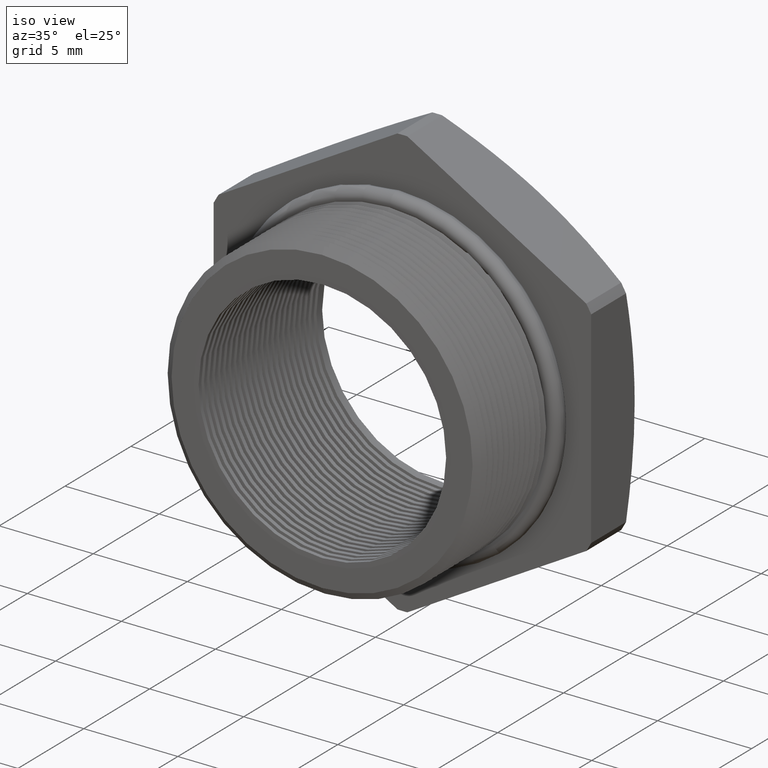
[diagram: clean part render]
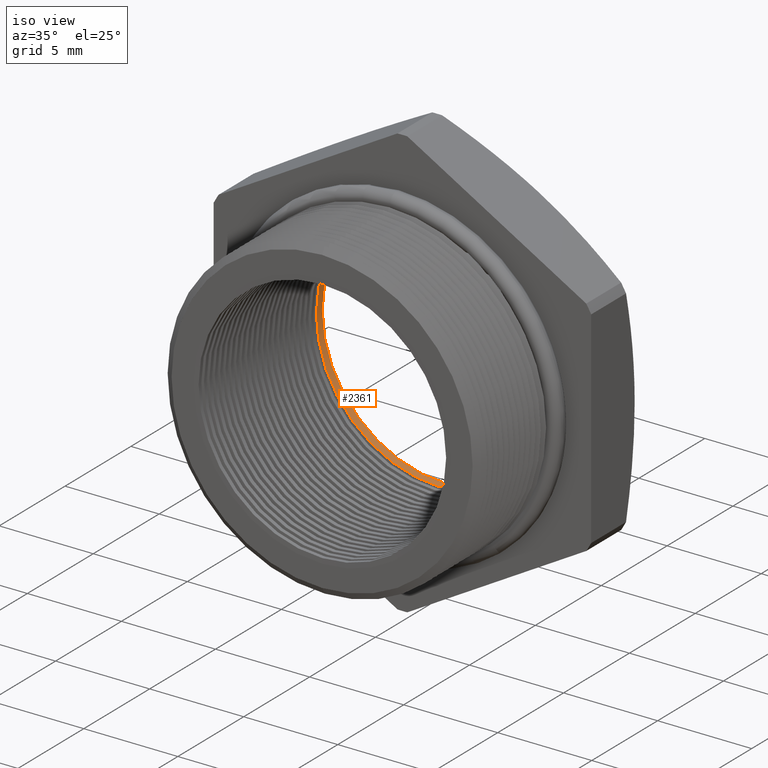
[diagram: same view with one face highlighted and labeled with its STEP entity id]
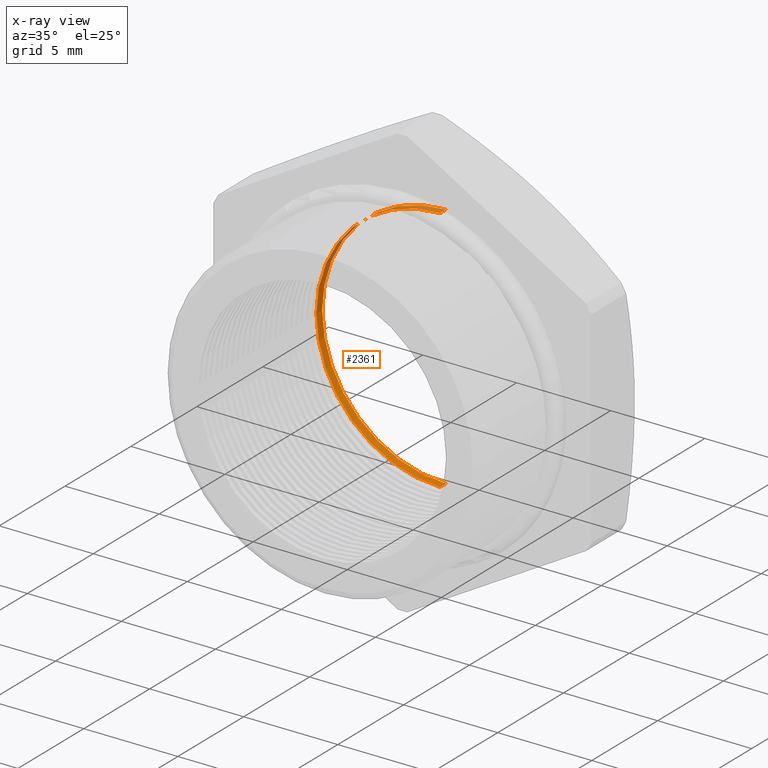
[diagram: x-ray of the same camera — body ghosted, the highlighted face saturated]
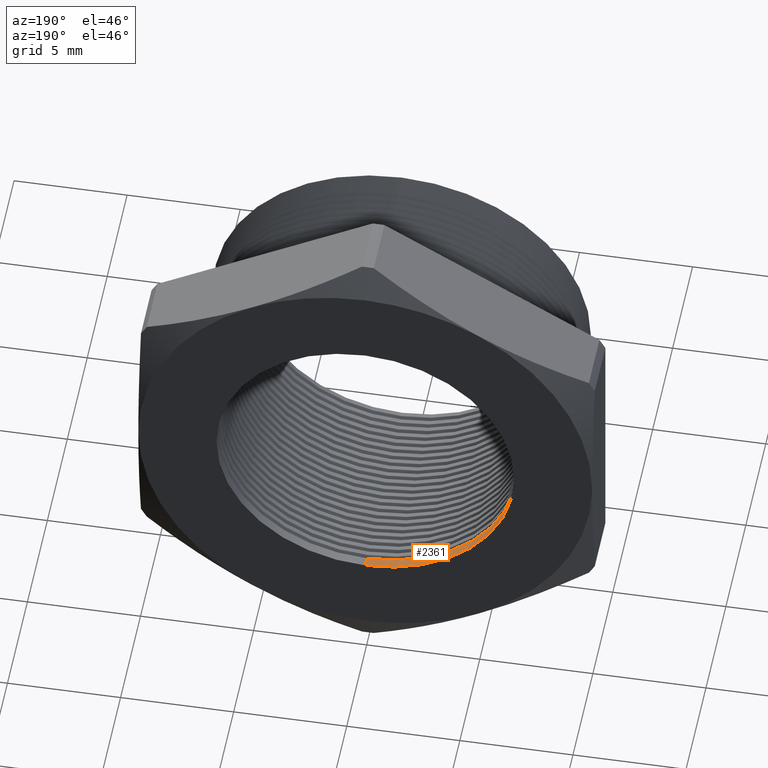
[diagram: same view with one face highlighted and labeled with its STEP entity id]
A machine part, iso view. The second image highlights one B-rep face of the part: STEP entity #2361.
The next image is the same camera in x-ray: the body ghosted, the highlighted face saturated — about 22% of this face is hidden behind the body in this view.
A second angle (auxiliary view) of the same face is appended — the face is thin or edge-on in the first view.
In plain terms, the highlighted cylindrical surface (partial cylindrical patch) has radius 6.5783 mm, axis along (-0, -1, -0).
Its self-contained STEP definition (entity closure, byte-faithful):
#64 = ORIENTED_EDGE ( 'NONE', *, *, #65, .T. ) ;
#65 = EDGE_CURVE ( 'NONE', #2365, #2277, #1509, .T. ) ;
#66 = ORIENTED_EDGE ( 'NONE', *, *, #2275, .F. ) ;
#67 = ORIENTED_EDGE ( 'NONE', *, *, #68, .F. ) ;
#68 = EDGE_CURVE ( 'NONE', #2366, #2276, #1505, .T. ) ;
#1502 = DIRECTION ( 'NONE',  ( -0.0000000000000000000, -1.000000000000000000, -0.0000000000000000000 ) ) ;
#1503 = VECTOR ( 'NONE', #1502, 39.37007874015748100 ) ;
#1504 = CARTESIAN_POINT ( 'NONE',  ( 0.0000000000000000000, 0.0000000000000000000, -0.2589880461203001900 ) ) ;
#1505 = LINE ( 'NONE', #1504, #1503 ) ;
#1506 = DIRECTION ( 'NONE',  ( -0.0000000000000000000, -1.000000000000000000, -0.0000000000000000000 ) ) ;
#1507 = VECTOR ( 'NONE', #1506, 39.37007874015748100 ) ;
#1508 = CARTESIAN_POINT ( 'NONE',  ( 3.171688816986526800E-017, 0.0000000000000000000, 0.2589880461203001900 ) ) ;
#1509 = LINE ( 'NONE', #1508, #1507 ) ;
#2275 = EDGE_CURVE ( 'NONE', #2276, #2277, #4761, .T. ) ;
#2276 = VERTEX_POINT ( 'NONE', #4751 ) ;
#2277 = VERTEX_POINT ( 'NONE', #4750 ) ;
#2361 = ADVANCED_FACE ( 'NONE', ( #4953 ), #4951, .F. ) ;
#2362 = EDGE_LOOP ( 'NONE', ( #2363, #64, #66, #67 ) ) ;
#2363 = ORIENTED_EDGE ( 'NONE', *, *, #2364, .F. ) ;
#2364 = EDGE_CURVE ( 'NONE', #2365, #2366, #4952, .T. ) ;
#2365 = VERTEX_POINT ( 'NONE', #4942 ) ;
#2366 = VERTEX_POINT ( 'NONE', #4941 ) ;
#4750 = CARTESIAN_POINT ( 'NONE',  ( 3.171688816986526800E-017, 0.3903219653570460000, 0.2589880461203001900 ) ) ;
#4751 = CARTESIAN_POINT ( 'NONE',  ( 0.0000000000000000000, 0.3903219653570460000, -0.2589880461203001900 ) ) ;
#4752 = DIRECTION ( 'NONE',  ( 0.0000000000000000000, 0.0000000000000000000, -1.000000000000000000 ) ) ;
#4753 = DIRECTION ( 'NONE',  ( -0.0000000000000000000, 1.000000000000000000, -0.0000000000000000000 ) ) ;
#4754 = CARTESIAN_POINT ( 'NONE',  ( 0.0000000000000000000, 0.3903219653570460000, 0.0000000000000000000 ) ) ;
#4755 = AXIS2_PLACEMENT_3D ( 'NONE', #4754, #4753, #4752 ) ;
#4761 = CIRCLE ( 'NONE', #4755, 0.2589880461203001900 ) ;
#4941 = CARTESIAN_POINT ( 'NONE',  ( 0.0000000000000000000, 0.4075548905829479200, -0.2589880461203001900 ) ) ;
#4942 = CARTESIAN_POINT ( 'NONE',  ( 3.171688816986526800E-017, 0.4075548905829479200, 0.2589880461203001900 ) ) ;
#4943 = DIRECTION ( 'NONE',  ( 0.0000000000000000000, 0.0000000000000000000, -1.000000000000000000 ) ) ;
#4944 = DIRECTION ( 'NONE',  ( -0.0000000000000000000, -1.000000000000000000, -0.0000000000000000000 ) ) ;
#4945 = CARTESIAN_POINT ( 'NONE',  ( 0.0000000000000000000, 0.4075548905829479200, 0.0000000000000000000 ) ) ;
#4946 = AXIS2_PLACEMENT_3D ( 'NONE', #4945, #4944, #4943 ) ;
#4947 = DIRECTION ( 'NONE',  ( 0.0000000000000000000, 0.0000000000000000000, -1.000000000000000000 ) ) ;
#4948 = DIRECTION ( 'NONE',  ( -0.0000000000000000000, -1.000000000000000000, -0.0000000000000000000 ) ) ;
#4949 = CARTESIAN_POINT ( 'NONE',  ( 0.0000000000000000000, 0.0000000000000000000, 0.0000000000000000000 ) ) ;
#4950 = AXIS2_PLACEMENT_3D ( 'NONE', #4949, #4948, #4947 ) ;
#4951 = CYLINDRICAL_SURFACE ( 'NONE', #4950, 0.2589880461203001900 ) ;
#4952 = CIRCLE ( 'NONE', #4946, 0.2589880461203001900 ) ;
#4953 = FACE_OUTER_BOUND ( 'NONE', #2362, .T. ) ;